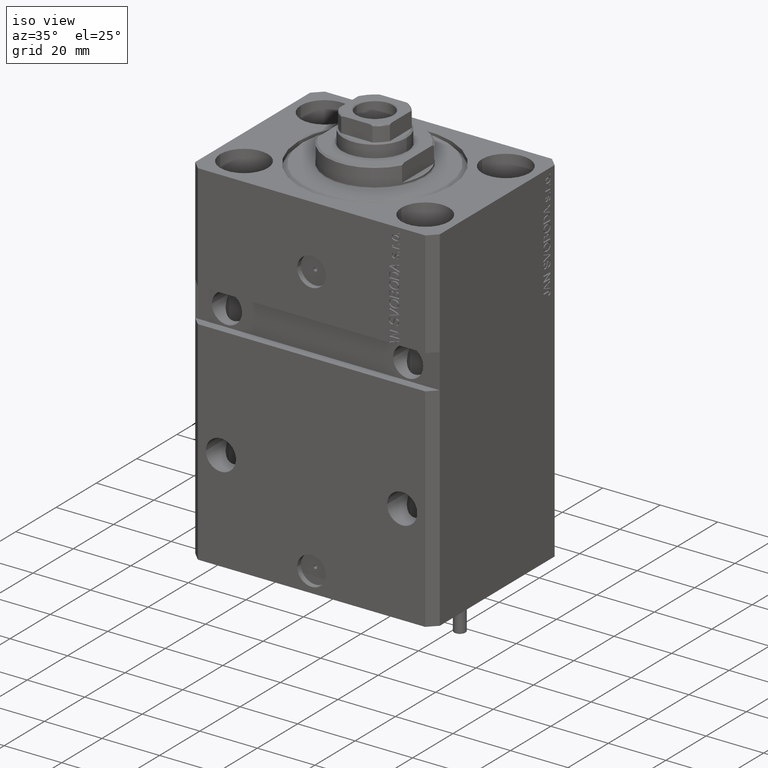
[diagram: clean part render]
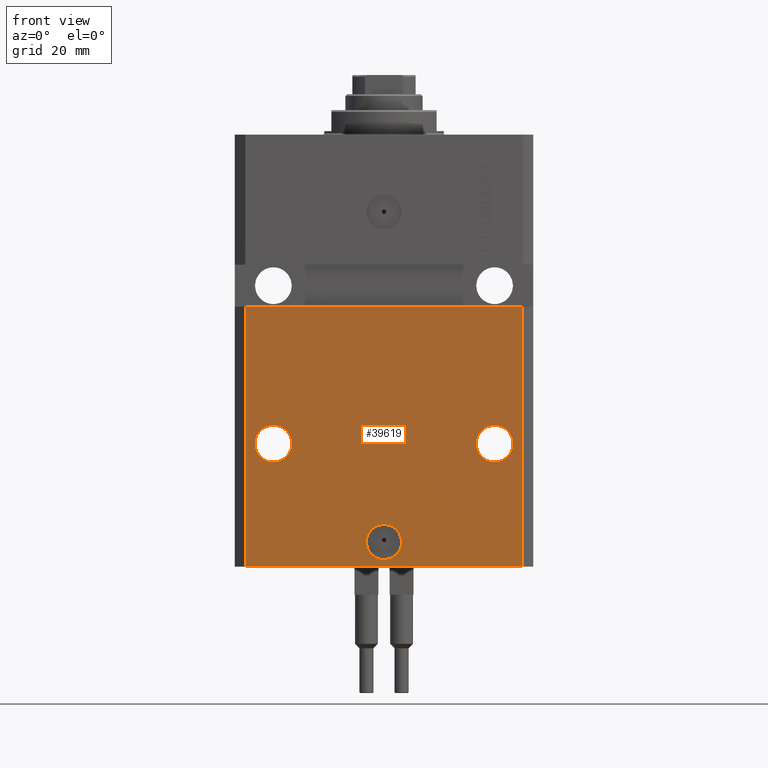
[diagram: tour spotlight — one face highlighted and labeled with its STEP entity id]
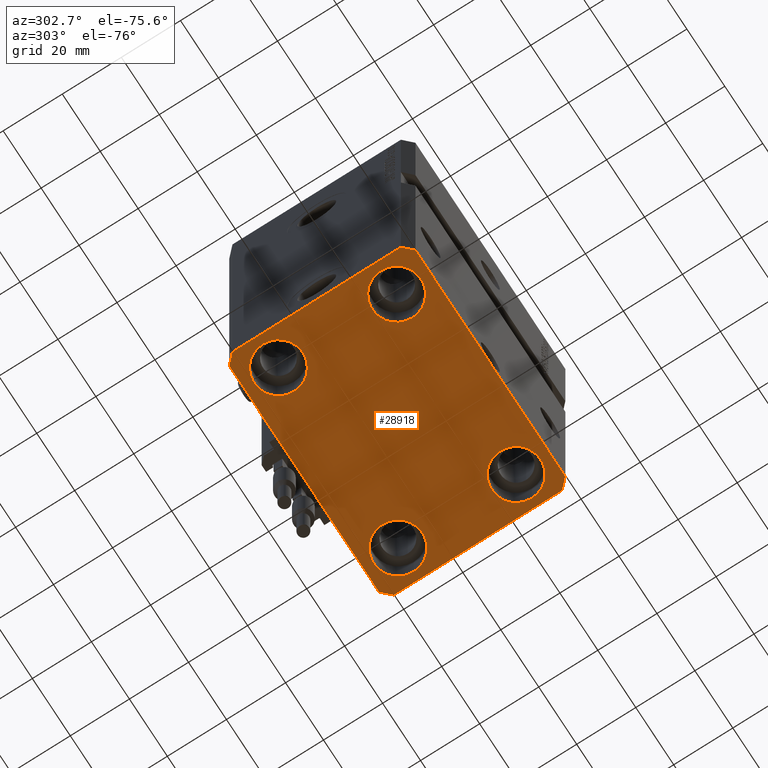
[diagram: tour spotlight — one face highlighted and labeled with its STEP entity id]
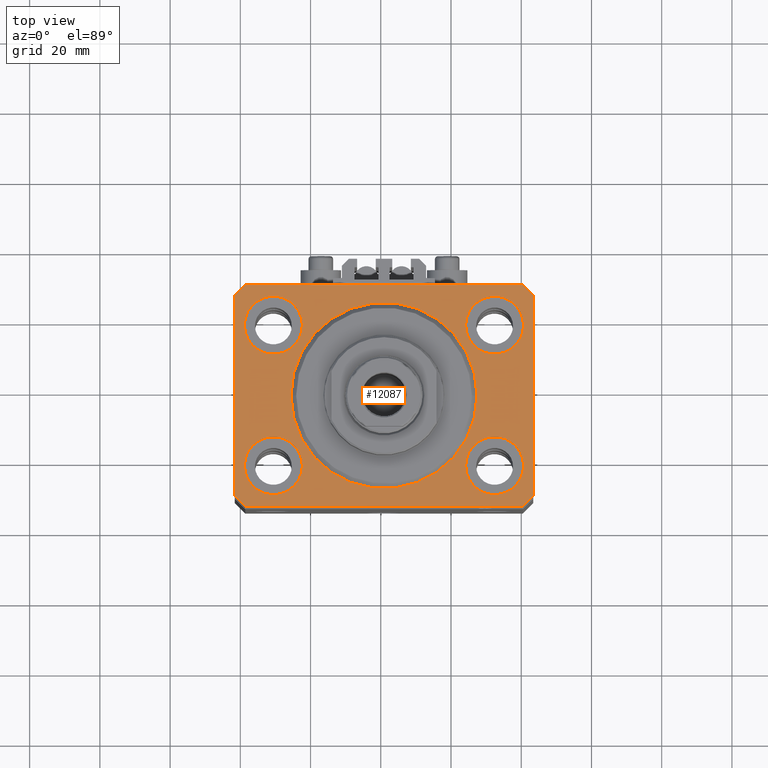
[diagram: tour spotlight — one face highlighted and labeled with its STEP entity id]
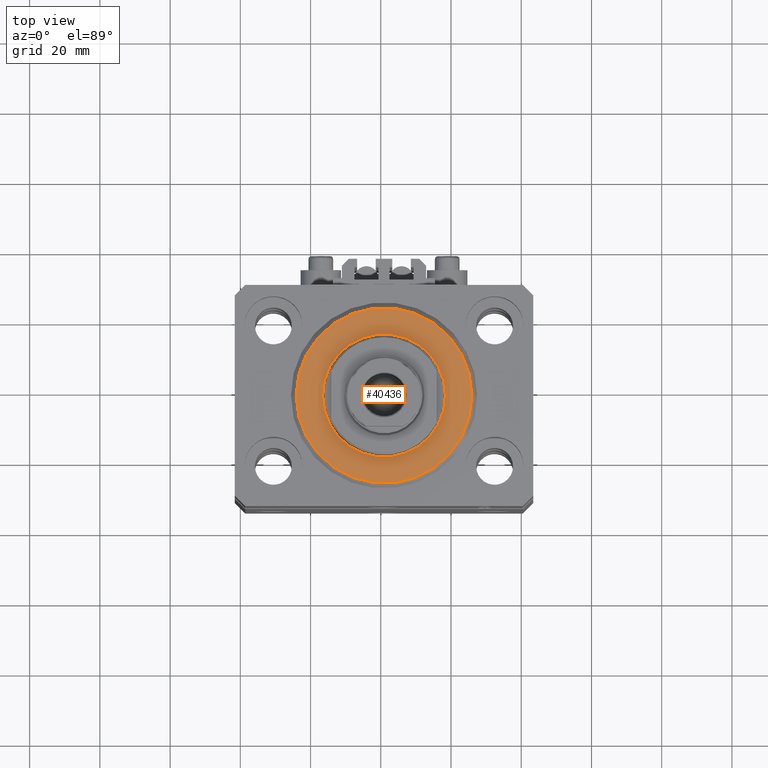
[diagram: tour spotlight — one face highlighted and labeled with its STEP entity id]
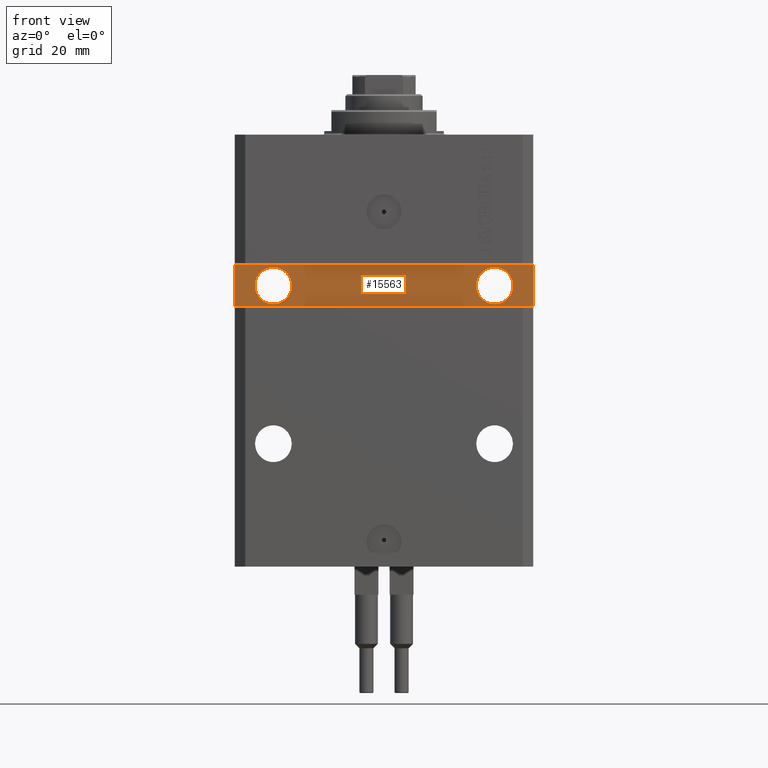
[diagram: tour spotlight — one face highlighted and labeled with its STEP entity id]
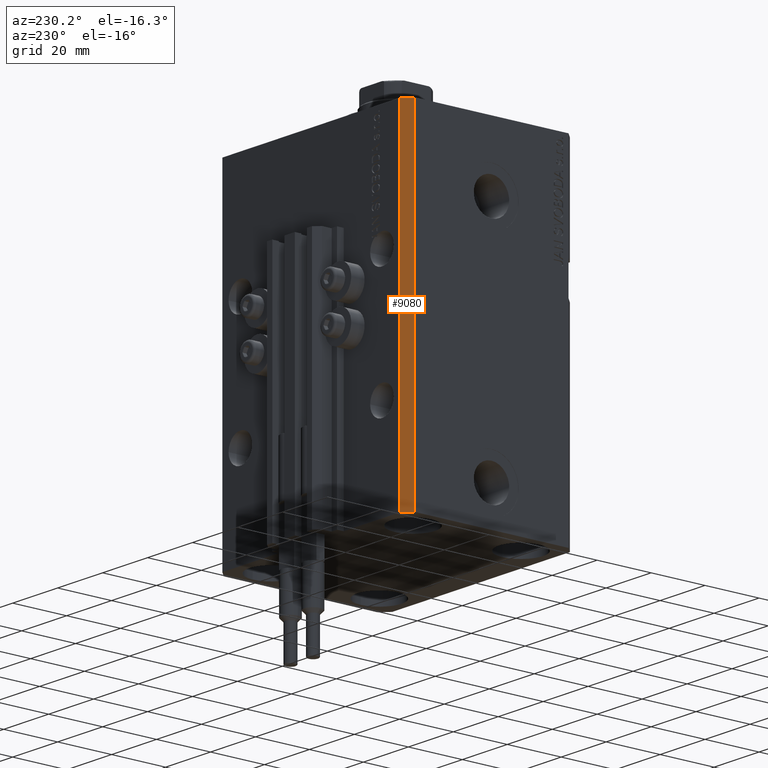
[diagram: tour spotlight — one face highlighted and labeled with its STEP entity id]
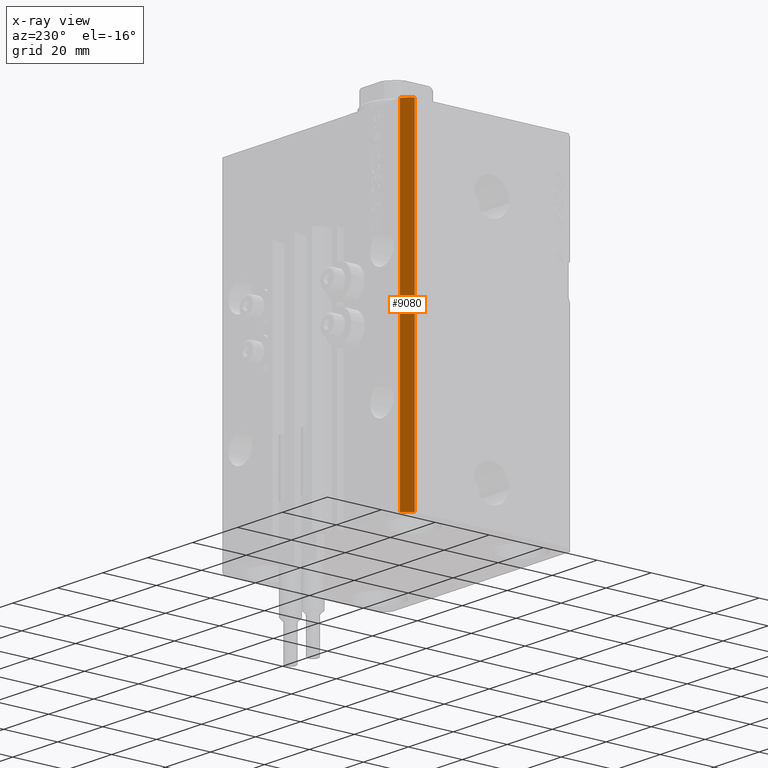
[diagram: x-ray of the same camera — body ghosted, this tour face saturated]
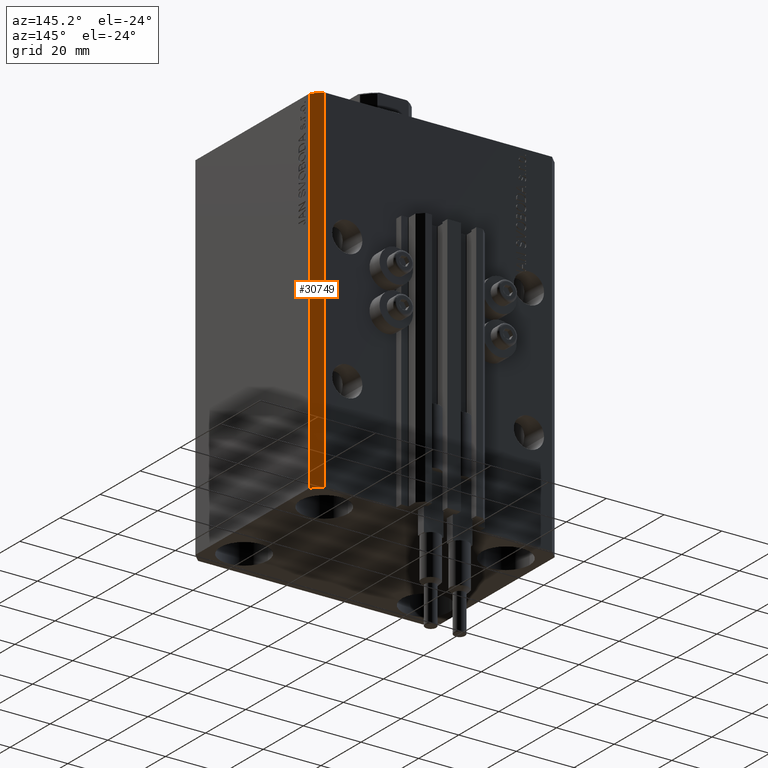
[diagram: tour spotlight — one face highlighted and labeled with its STEP entity id]
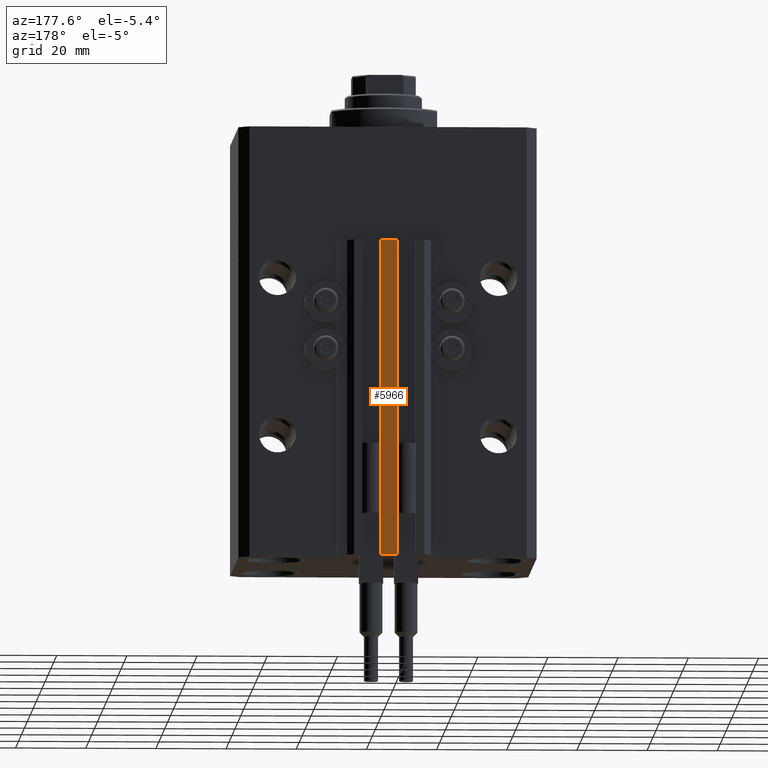
[diagram: tour spotlight — one face highlighted and labeled with its STEP entity id]
A machine part: a face-by-face anatomy tour. The part has 1159 B-rep faces; the first image is the clean iso view, then the 8 largest visible faces are spotlighted one at a time (largest first), each with its STEP entity span.

Face 1 — front view, entity #39619. In plain terms, the highlighted planar face has unit normal (0, -1, 0).
Definition (entity closure, byte-faithful):
#346 = CARTESIAN_POINT ( 'NONE',  ( -26.25000000000001776, -31.50000000000000711, -88.00000000000000000 ) ) ;
#401 = FACE_OUTER_BOUND ( 'NONE', #24232, .T. ) ;
#608 = EDGE_CURVE ( 'NONE', #42490, #39798, #8976, .T. ) ;
#633 = PLANE ( 'NONE',  #36963 ) ;
#1395 = ORIENTED_EDGE ( 'NONE', *, *, #44596, .F. ) ;
#2738 = CARTESIAN_POINT ( 'NONE',  ( 39.50000000000001421, -31.49999999999999289, -48.99999999999997868 ) ) ;
#2892 = CARTESIAN_POINT ( 'NONE',  ( -36.75000000000001421, -31.50000000000000711, -88.00000000000000000 ) ) ;
#3923 = ORIENTED_EDGE ( 'NONE', *, *, #608, .T. ) ;
#4335 = CARTESIAN_POINT ( 'NONE',  ( 36.75000000000001421, -31.49999999999999289, -88.00000000000000000 ) ) ;
#4857 = EDGE_LOOP ( 'NONE', ( #48823, #11406 ) ) ;
#6095 = CARTESIAN_POINT ( 'NONE',  ( -5.000000000000006217, -31.50000000000000000, -115.9999999999999858 ) ) ;
#6344 = CARTESIAN_POINT ( 'NONE',  ( 39.50000000000000711, -31.50000000000000000, -123.0000000000000000 ) ) ;
#6893 = EDGE_CURVE ( 'NONE', #10906, #13227, #46861, .T. ) ;
#6956 = CARTESIAN_POINT ( 'NONE',  ( -39.50000000000000000, -31.50000000000000711, -48.99999999999999289 ) ) ;
#7179 = CARTESIAN_POINT ( 'NONE',  ( -42.50000000000000000, -31.50000000000000711, -48.99999999999999289 ) ) ;
#7321 = VERTEX_POINT ( 'NONE', #38075 ) ;
#8036 = CIRCLE ( 'NONE', #30952, 5.249999999999997335 ) ;
#8294 = CARTESIAN_POINT ( 'NONE',  ( -39.50000000000000711, -31.50000000000000000, -123.0000000000000000 ) ) ;
#8811 = DIRECTION ( 'NONE',  ( 1.000000000000000000, 0.000000000000000000, 0.000000000000000000 ) ) ;
#8976 = LINE ( 'NONE', #9219, #23827 ) ;
#9219 = CARTESIAN_POINT ( 'NONE',  ( 39.50000000000000711, -31.50000000000000000, -123.0000000000000000 ) ) ;
#9681 = VERTEX_POINT ( 'NONE', #6956 ) ;
#10906 = VERTEX_POINT ( 'NONE', #346 ) ;
#11292 = FACE_BOUND ( 'NONE', #20042, .T. ) ;
#11387 = LINE ( 'NONE', #7179, #12399 ) ;
#11406 = ORIENTED_EDGE ( 'NONE', *, *, #19606, .F. ) ;
#11650 = CARTESIAN_POINT ( 'NONE',  ( -39.50000000000000711, -31.50000000000000000, -123.0000000000000000 ) ) ;
#11990 = AXIS2_PLACEMENT_3D ( 'NONE', #48583, #30260, #30007 ) ;
#12399 = VECTOR ( 'NONE', #37119, 1000.000000000000000 ) ;
#13227 = VERTEX_POINT ( 'NONE', #2892 ) ;
#15118 = LINE ( 'NONE', #11650, #24128 ) ;
#15726 = CARTESIAN_POINT ( 'NONE',  ( -39.50000000000000711, -31.50000000000000000, -123.0000000000000000 ) ) ;
#16004 = VERTEX_POINT ( 'NONE', #8294 ) ;
#16245 = DIRECTION ( 'NONE',  ( 1.176083712526788232E-16, -1.000000000000000000, 0.000000000000000000 ) ) ;
#16613 = CIRCLE ( 'NONE', #40305, 5.000000000000006217 ) ;
#16732 = CARTESIAN_POINT ( 'NONE',  ( 0.000000000000000000, -31.50000000000000000, -115.9999999999999858 ) ) ;
#17476 = CARTESIAN_POINT ( 'NONE',  ( 26.25000000000001776, -31.49999999999999289, -88.00000000000000000 ) ) ;
#17695 = CARTESIAN_POINT ( 'NONE',  ( 31.50000000000001421, -31.49999999999999289, -88.00000000000000000 ) ) ;
#17737 = EDGE_CURVE ( 'NONE', #25678, #7321, #37999, .T. ) ;
#18204 = LINE ( 'NONE', #26367, #47164 ) ;
#19155 = EDGE_CURVE ( 'NONE', #13227, #10906, #19864, .T. ) ;
#19606 = EDGE_CURVE ( 'NONE', #25655, #38736, #8036, .T. ) ;
#19864 = CIRCLE ( 'NONE', #11990, 5.249999999999997335 ) ;
#20042 = EDGE_LOOP ( 'NONE', ( #1395, #29480 ) ) ;
#22305 = DIRECTION ( 'NONE',  ( -1.000000000000000000, 0.000000000000000000, 0.000000000000000000 ) ) ;
#23139 = FACE_BOUND ( 'NONE', #45261, .T. ) ;
#23736 = AXIS2_PLACEMENT_3D ( 'NONE', #16732, #16245, #8811 ) ;
#23827 = VECTOR ( 'NONE', #36189, 1000.000000000000000 ) ;
#24128 = VECTOR ( 'NONE', #45782, 1000.000000000000000 ) ;
#24232 = EDGE_LOOP ( 'NONE', ( #30157, #27457, #33352, #3923 ) ) ;
#25655 = VERTEX_POINT ( 'NONE', #17476 ) ;
#25678 = VERTEX_POINT ( 'NONE', #6095 ) ;
#26266 = DIRECTION ( 'NONE',  ( 1.176083712526788232E-16, -1.000000000000000000, 0.000000000000000000 ) ) ;
#26367 = CARTESIAN_POINT ( 'NONE',  ( -39.50000000000000711, -31.50000000000000000, -123.0000000000000000 ) ) ;
#27457 = ORIENTED_EDGE ( 'NONE', *, *, #37882, .F. ) ;
#28183 = CARTESIAN_POINT ( 'NONE',  ( 31.50000000000001421, -31.49999999999999289, -88.00000000000000000 ) ) ;
#28571 = DIRECTION ( 'NONE',  ( 1.000000000000000000, 0.000000000000000000, 0.000000000000000000 ) ) ;
#29480 = ORIENTED_EDGE ( 'NONE', *, *, #17737, .F. ) ;
#29489 = AXIS2_PLACEMENT_3D ( 'NONE', #48047, #26266, #22305 ) ;
#30007 = DIRECTION ( 'NONE',  ( -1.000000000000000000, 0.000000000000000000, 0.000000000000000000 ) ) ;
#30061 = DIRECTION ( 'NONE',  ( 0.000000000000000000, 0.000000000000000000, 1.000000000000000000 ) ) ;
#30157 = ORIENTED_EDGE ( 'NONE', *, *, #34737, .F. ) ;
#30260 = DIRECTION ( 'NONE',  ( 1.176083712526788232E-16, -1.000000000000000000, 0.000000000000000000 ) ) ;
#30335 = FACE_BOUND ( 'NONE', #4857, .T. ) ;
#30461 = AXIS2_PLACEMENT_3D ( 'NONE', #28183, #42550, #39567 ) ;
#30529 = CARTESIAN_POINT ( 'NONE',  ( 0.000000000000000000, -31.50000000000000000, -115.9999999999999858 ) ) ;
#30952 = AXIS2_PLACEMENT_3D ( 'NONE', #17695, #44652, #28571 ) ;
#31653 = EDGE_CURVE ( 'NONE', #16004, #42490, #15118, .T. ) ;
#31778 = EDGE_CURVE ( 'NONE', #38736, #25655, #45513, .T. ) ;
#33352 = ORIENTED_EDGE ( 'NONE', *, *, #31653, .T. ) ;
#34737 = EDGE_CURVE ( 'NONE', #9681, #39798, #11387, .T. ) ;
#34797 = ORIENTED_EDGE ( 'NONE', *, *, #6893, .F. ) ;
#36189 = DIRECTION ( 'NONE',  ( 0.000000000000000000, 0.000000000000000000, 1.000000000000000000 ) ) ;
#36963 = AXIS2_PLACEMENT_3D ( 'NONE', #15726, #45899, #41715 ) ;
#37119 = DIRECTION ( 'NONE',  ( 1.000000000000000000, 1.632680918566406300E-16, 1.632680918566406300E-16 ) ) ;
#37882 = EDGE_CURVE ( 'NONE', #16004, #9681, #18204, .T. ) ;
#37999 = CIRCLE ( 'NONE', #23736, 5.000000000000006217 ) ;
#38075 = CARTESIAN_POINT ( 'NONE',  ( 5.000000000000006217, -31.50000000000000000, -115.9999999999999858 ) ) ;
#38736 = VERTEX_POINT ( 'NONE', #4335 ) ;
#39069 = ORIENTED_EDGE ( 'NONE', *, *, #19155, .F. ) ;
#39567 = DIRECTION ( 'NONE',  ( 1.000000000000000000, 0.000000000000000000, 0.000000000000000000 ) ) ;
#39619 = ADVANCED_FACE ( 'NONE', ( #11292, #30335, #23139, #401 ), #633, .T. ) ;
#39798 = VERTEX_POINT ( 'NONE', #2738 ) ;
#40305 = AXIS2_PLACEMENT_3D ( 'NONE', #30529, #42388, #45142 ) ;
#41715 = DIRECTION ( 'NONE',  ( 0.000000000000000000, -0.000000000000000000, -1.000000000000000000 ) ) ;
#42388 = DIRECTION ( 'NONE',  ( 1.176083712526788232E-16, -1.000000000000000000, 0.000000000000000000 ) ) ;
#42490 = VERTEX_POINT ( 'NONE', #6344 ) ;
#42550 = DIRECTION ( 'NONE',  ( 1.176083712526788232E-16, -1.000000000000000000, 0.000000000000000000 ) ) ;
#44596 = EDGE_CURVE ( 'NONE', #7321, #25678, #16613, .T. ) ;
#44652 = DIRECTION ( 'NONE',  ( 1.176083712526788232E-16, -1.000000000000000000, 0.000000000000000000 ) ) ;
#45142 = DIRECTION ( 'NONE',  ( 1.000000000000000000, 0.000000000000000000, 0.000000000000000000 ) ) ;
#45261 = EDGE_LOOP ( 'NONE', ( #34797, #39069 ) ) ;
#45513 = CIRCLE ( 'NONE', #30461, 5.249999999999997335 ) ;
#45782 = DIRECTION ( 'NONE',  ( 1.000000000000000000, 0.000000000000000000, 0.000000000000000000 ) ) ;
#45899 = DIRECTION ( 'NONE',  ( 0.000000000000000000, -1.000000000000000000, 0.000000000000000000 ) ) ;
#46861 = CIRCLE ( 'NONE', #29489, 5.249999999999997335 ) ;
#47164 = VECTOR ( 'NONE', #30061, 1000.000000000000000 ) ;
#48047 = CARTESIAN_POINT ( 'NONE',  ( -31.50000000000001421, -31.50000000000000711, -88.00000000000000000 ) ) ;
#48583 = CARTESIAN_POINT ( 'NONE',  ( -31.50000000000001421, -31.50000000000000711, -88.00000000000000000 ) ) ;
#48823 = ORIENTED_EDGE ( 'NONE', *, *, #31778, .F. ) ;

Face 2 — auxiliary view, entity #28918. In plain terms, the highlighted planar face has unit normal (0, 0, 1).
Definition (entity closure, byte-faithful):
#8 = DIRECTION ( 'NONE',  ( 1.000000000000000000, 0.000000000000000000, 0.000000000000000000 ) ) ;
#184 = AXIS2_PLACEMENT_3D ( 'NONE', #7547, #42163, #30046 ) ;
#404 = DIRECTION ( 'NONE',  ( 1.000000000000000000, 0.000000000000000000, 0.000000000000000000 ) ) ;
#521 = VECTOR ( 'NONE', #23723, 1000.000000000000000 ) ;
#543 = CARTESIAN_POINT ( 'NONE',  ( -42.50000000000000000, 28.50000000000000000, -123.0000000000000000 ) ) ;
#1969 = CARTESIAN_POINT ( 'NONE',  ( 39.74999999999999289, -20.00000000000000000, -123.0000000000000000 ) ) ;
#2247 = FACE_BOUND ( 'NONE', #14676, .T. ) ;
#2476 = ORIENTED_EDGE ( 'NONE', *, *, #39917, .T. ) ;
#3302 = DIRECTION ( 'NONE',  ( -0.000000000000000000, -0.000000000000000000, 1.000000000000000000 ) ) ;
#3689 = EDGE_CURVE ( 'NONE', #3711, #12367, #19121, .T. ) ;
#3711 = VERTEX_POINT ( 'NONE', #8423 ) ;
#4911 = CARTESIAN_POINT ( 'NONE',  ( -42.50000000000000000, 28.50000000000000000, -123.0000000000000000 ) ) ;
#5014 = EDGE_LOOP ( 'NONE', ( #38691, #11265, #37147, #26753, #43038, #42268, #38485, #8661 ) ) ;
#6344 = CARTESIAN_POINT ( 'NONE',  ( 39.50000000000000711, -31.50000000000000000, -123.0000000000000000 ) ) ;
#6436 = PLANE ( 'NONE',  #40641 ) ;
#6579 = CARTESIAN_POINT ( 'NONE',  ( 39.50000000000000711, -31.50000000000000000, -123.0000000000000000 ) ) ;
#7007 = CARTESIAN_POINT ( 'NONE',  ( -31.50000000000000000, -20.00000000000000000, -123.0000000000000000 ) ) ;
#7331 = ORIENTED_EDGE ( 'NONE', *, *, #20529, .T. ) ;
#7547 = CARTESIAN_POINT ( 'NONE',  ( -31.50000000000000000, -20.00000000000000000, -123.0000000000000000 ) ) ;
#8000 = VERTEX_POINT ( 'NONE', #47761 ) ;
#8223 = DIRECTION ( 'NONE',  ( 8.886653596232072440E-15, 1.000000000000000000, 0.000000000000000000 ) ) ;
#8294 = CARTESIAN_POINT ( 'NONE',  ( -39.50000000000000711, -31.50000000000000000, -123.0000000000000000 ) ) ;
#8328 = EDGE_CURVE ( 'NONE', #8000, #37282, #27897, .T. ) ;
#8423 = CARTESIAN_POINT ( 'NONE',  ( 39.74999999999999289, 20.00000000000001066, -123.0000000000000000 ) ) ;
#8639 = LINE ( 'NONE', #16561, #521 ) ;
#8661 = ORIENTED_EDGE ( 'NONE', *, *, #9044, .F. ) ;
#9044 = EDGE_CURVE ( 'NONE', #37282, #28803, #28418, .T. ) ;
#9066 = ORIENTED_EDGE ( 'NONE', *, *, #45829, .T. ) ;
#9100 = DIRECTION ( 'NONE',  ( -1.000000000000000000, 0.000000000000000000, 0.000000000000000000 ) ) ;
#9110 = LINE ( 'NONE', #4911, #39312 ) ;
#9292 = CIRCLE ( 'NONE', #31399, 8.249999999999992895 ) ;
#9931 = VERTEX_POINT ( 'NONE', #1969 ) ;
#9977 = CIRCLE ( 'NONE', #14752, 8.250000000000000000 ) ;
#10155 = FACE_BOUND ( 'NONE', #45198, .T. ) ;
#10275 = CARTESIAN_POINT ( 'NONE',  ( 31.50000000000000000, 20.00000000000001066, -123.0000000000000000 ) ) ;
#10471 = EDGE_CURVE ( 'NONE', #36261, #19921, #36268, .T. ) ;
#10520 = VERTEX_POINT ( 'NONE', #26626 ) ;
#11111 = CIRCLE ( 'NONE', #26898, 8.249999999999992895 ) ;
#11265 = ORIENTED_EDGE ( 'NONE', *, *, #36259, .F. ) ;
#11650 = CARTESIAN_POINT ( 'NONE',  ( -39.50000000000000711, -31.50000000000000000, -123.0000000000000000 ) ) ;
#12351 = CARTESIAN_POINT ( 'NONE',  ( -39.50000000000000711, 31.50000000000000000, -123.0000000000000000 ) ) ;
#12367 = VERTEX_POINT ( 'NONE', #36784 ) ;
#13506 = ORIENTED_EDGE ( 'NONE', *, *, #3689, .T. ) ;
#14102 = FACE_BOUND ( 'NONE', #41236, .T. ) ;
#14221 = DIRECTION ( 'NONE',  ( -0.000000000000000000, -0.000000000000000000, 1.000000000000000000 ) ) ;
#14676 = EDGE_LOOP ( 'NONE', ( #38885, #39965 ) ) ;
#14752 = AXIS2_PLACEMENT_3D ( 'NONE', #7007, #3302, #18876 ) ;
#15118 = LINE ( 'NONE', #11650, #24128 ) ;
#15178 = CIRCLE ( 'NONE', #31761, 8.249999999999992895 ) ;
#15992 = CIRCLE ( 'NONE', #184, 8.250000000000000000 ) ;
#16004 = VERTEX_POINT ( 'NONE', #8294 ) ;
#16561 = CARTESIAN_POINT ( 'NONE',  ( -42.50000000000000000, -28.50000000000000000, -123.0000000000000000 ) ) ;
#16591 = CARTESIAN_POINT ( 'NONE',  ( 31.50000000000000000, 20.00000000000001066, -123.0000000000000000 ) ) ;
#17340 = FACE_OUTER_BOUND ( 'NONE', #5014, .T. ) ;
#17380 = CARTESIAN_POINT ( 'NONE',  ( 31.50000000000000000, -20.00000000000000000, -123.0000000000000000 ) ) ;
#17941 = CARTESIAN_POINT ( 'NONE',  ( -31.50000000000000000, 20.00000000000000000, -123.0000000000000000 ) ) ;
#18782 = VECTOR ( 'NONE', #8223, 1000.000000000000000 ) ;
#18876 = DIRECTION ( 'NONE',  ( 1.000000000000000000, 0.000000000000000000, 0.000000000000000000 ) ) ;
#18937 = DIRECTION ( 'NONE',  ( 0.7071067811865483499, 0.7071067811865466846, 0.000000000000000000 ) ) ;
#19121 = CIRCLE ( 'NONE', #38194, 8.249999999999992895 ) ;
#19180 = CARTESIAN_POINT ( 'NONE',  ( 42.50000000000051870, 28.49999999999995381, -123.0000000000000000 ) ) ;
#19844 = LINE ( 'NONE', #42129, #18782 ) ;
#19921 = VERTEX_POINT ( 'NONE', #35949 ) ;
#20526 = EDGE_CURVE ( 'NONE', #19921, #36261, #39679, .T. ) ;
#20529 = EDGE_CURVE ( 'NONE', #12367, #3711, #15178, .T. ) ;
#20566 = VERTEX_POINT ( 'NONE', #29060 ) ;
#20709 = EDGE_CURVE ( 'NONE', #23319, #44407, #15992, .T. ) ;
#20802 = EDGE_LOOP ( 'NONE', ( #2476, #9066 ) ) ;
#20961 = VECTOR ( 'NONE', #18937, 1000.000000000000000 ) ;
#22477 = VECTOR ( 'NONE', #43279, 1000.000000000000000 ) ;
#23319 = VERTEX_POINT ( 'NONE', #39035 ) ;
#23357 = CARTESIAN_POINT ( 'NONE',  ( 42.50000000000051870, 28.49999999999995381, -123.0000000000000000 ) ) ;
#23402 = ORIENTED_EDGE ( 'NONE', *, *, #36513, .T. ) ;
#23723 = DIRECTION ( 'NONE',  ( 0.7071067811865471286, -0.7071067811865479058, 0.000000000000000000 ) ) ;
#24128 = VECTOR ( 'NONE', #45782, 1000.000000000000000 ) ;
#24197 = DIRECTION ( 'NONE',  ( 0.000000000000000000, -1.000000000000000000, 0.000000000000000000 ) ) ;
#26626 = CARTESIAN_POINT ( 'NONE',  ( -42.50000000000000000, -28.50000000000000000, -123.0000000000000000 ) ) ;
#26753 = ORIENTED_EDGE ( 'NONE', *, *, #30479, .F. ) ;
#26898 = AXIS2_PLACEMENT_3D ( 'NONE', #17380, #32952, #28985 ) ;
#27105 = CARTESIAN_POINT ( 'NONE',  ( -31.50000000000000000, 20.00000000000000000, -123.0000000000000000 ) ) ;
#27318 = DIRECTION ( 'NONE',  ( -0.7071067811865356934, 0.7071067811865594521, 0.000000000000000000 ) ) ;
#27458 = AXIS2_PLACEMENT_3D ( 'NONE', #27105, #45667, #404 ) ;
#27831 = CARTESIAN_POINT ( 'NONE',  ( -23.25000000000000000, -20.00000000000000000, -123.0000000000000000 ) ) ;
#27897 = LINE ( 'NONE', #31609, #30318 ) ;
#28418 = LINE ( 'NONE', #12351, #22477 ) ;
#28803 = VERTEX_POINT ( 'NONE', #543 ) ;
#28918 = ADVANCED_FACE ( 'NONE', ( #10155, #40086, #14102, #2247, #17340 ), #6436, .F. ) ;
#28985 = DIRECTION ( 'NONE',  ( 1.000000000000000000, 0.000000000000000000, 0.000000000000000000 ) ) ;
#29060 = CARTESIAN_POINT ( 'NONE',  ( 23.25000000000000355, -20.00000000000000000, -123.0000000000000000 ) ) ;
#30046 = DIRECTION ( 'NONE',  ( 1.000000000000000000, 0.000000000000000000, 0.000000000000000000 ) ) ;
#30318 = VECTOR ( 'NONE', #9100, 1000.000000000000000 ) ;
#30479 = EDGE_CURVE ( 'NONE', #42490, #33978, #44921, .T. ) ;
#30636 = VERTEX_POINT ( 'NONE', #19180 ) ;
#31399 = AXIS2_PLACEMENT_3D ( 'NONE', #45754, #41809, #8 ) ;
#31609 = CARTESIAN_POINT ( 'NONE',  ( 39.50000000000056843, 31.50000000000000000, -123.0000000000000000 ) ) ;
#31653 = EDGE_CURVE ( 'NONE', #16004, #42490, #15118, .T. ) ;
#31669 = DIRECTION ( 'NONE',  ( -0.000000000000000000, -0.000000000000000000, 1.000000000000000000 ) ) ;
#31761 = AXIS2_PLACEMENT_3D ( 'NONE', #10275, #32789, #47885 ) ;
#32431 = CARTESIAN_POINT ( 'NONE',  ( 0.000000000000000000, 0.000000000000000000, -123.0000000000000000 ) ) ;
#32789 = DIRECTION ( 'NONE',  ( -0.000000000000000000, -0.000000000000000000, 1.000000000000000000 ) ) ;
#32952 = DIRECTION ( 'NONE',  ( -0.000000000000000000, -0.000000000000000000, 1.000000000000000000 ) ) ;
#33978 = VERTEX_POINT ( 'NONE', #39775 ) ;
#35949 = CARTESIAN_POINT ( 'NONE',  ( -23.25000000000000000, 20.00000000000000000, -123.0000000000000000 ) ) ;
#36259 = EDGE_CURVE ( 'NONE', #30636, #8000, #38226, .T. ) ;
#36261 = VERTEX_POINT ( 'NONE', #38450 ) ;
#36268 = CIRCLE ( 'NONE', #27458, 8.250000000000000000 ) ;
#36513 = EDGE_CURVE ( 'NONE', #44407, #23319, #9977, .T. ) ;
#36634 = DIRECTION ( 'NONE',  ( 0.000000000000000000, 0.000000000000000000, 1.000000000000000000 ) ) ;
#36784 = CARTESIAN_POINT ( 'NONE',  ( 23.25000000000000355, 20.00000000000001066, -123.0000000000000000 ) ) ;
#36820 = VECTOR ( 'NONE', #27318, 1000.000000000000114 ) ;
#36909 = EDGE_CURVE ( 'NONE', #10520, #16004, #8639, .T. ) ;
#37147 = ORIENTED_EDGE ( 'NONE', *, *, #39259, .F. ) ;
#37282 = VERTEX_POINT ( 'NONE', #46290 ) ;
#38194 = AXIS2_PLACEMENT_3D ( 'NONE', #16591, #31669, #46510 ) ;
#38226 = LINE ( 'NONE', #23357, #36820 ) ;
#38450 = CARTESIAN_POINT ( 'NONE',  ( -39.75000000000000000, 20.00000000000000000, -123.0000000000000000 ) ) ;
#38485 = ORIENTED_EDGE ( 'NONE', *, *, #40151, .F. ) ;
#38691 = ORIENTED_EDGE ( 'NONE', *, *, #8328, .F. ) ;
#38885 = ORIENTED_EDGE ( 'NONE', *, *, #10471, .T. ) ;
#39035 = CARTESIAN_POINT ( 'NONE',  ( -39.75000000000000000, -20.00000000000000000, -123.0000000000000000 ) ) ;
#39259 = EDGE_CURVE ( 'NONE', #33978, #30636, #19844, .T. ) ;
#39312 = VECTOR ( 'NONE', #24197, 1000.000000000000000 ) ;
#39679 = CIRCLE ( 'NONE', #42826, 8.250000000000000000 ) ;
#39775 = CARTESIAN_POINT ( 'NONE',  ( 42.50000000000000711, -28.50000000000000355, -123.0000000000000000 ) ) ;
#39917 = EDGE_CURVE ( 'NONE', #20566, #9931, #9292, .T. ) ;
#39965 = ORIENTED_EDGE ( 'NONE', *, *, #20526, .T. ) ;
#40086 = FACE_BOUND ( 'NONE', #20802, .T. ) ;
#40151 = EDGE_CURVE ( 'NONE', #28803, #10520, #9110, .T. ) ;
#40641 = AXIS2_PLACEMENT_3D ( 'NONE', #32431, #36634, #47025 ) ;
#41236 = EDGE_LOOP ( 'NONE', ( #7331, #13506 ) ) ;
#41809 = DIRECTION ( 'NONE',  ( -0.000000000000000000, -0.000000000000000000, 1.000000000000000000 ) ) ;
#42129 = CARTESIAN_POINT ( 'NONE',  ( 42.50000000000000711, -28.50000000000000355, -123.0000000000000000 ) ) ;
#42163 = DIRECTION ( 'NONE',  ( -0.000000000000000000, -0.000000000000000000, 1.000000000000000000 ) ) ;
#42268 = ORIENTED_EDGE ( 'NONE', *, *, #36909, .F. ) ;
#42490 = VERTEX_POINT ( 'NONE', #6344 ) ;
#42826 = AXIS2_PLACEMENT_3D ( 'NONE', #17941, #14221, #44174 ) ;
#43038 = ORIENTED_EDGE ( 'NONE', *, *, #31653, .F. ) ;
#43279 = DIRECTION ( 'NONE',  ( -0.7071067811865471286, -0.7071067811865479058, 0.000000000000000000 ) ) ;
#44174 = DIRECTION ( 'NONE',  ( 1.000000000000000000, 0.000000000000000000, 0.000000000000000000 ) ) ;
#44339 = ORIENTED_EDGE ( 'NONE', *, *, #20709, .T. ) ;
#44407 = VERTEX_POINT ( 'NONE', #27831 ) ;
#44921 = LINE ( 'NONE', #6579, #20961 ) ;
#45198 = EDGE_LOOP ( 'NONE', ( #44339, #23402 ) ) ;
#45667 = DIRECTION ( 'NONE',  ( -0.000000000000000000, -0.000000000000000000, 1.000000000000000000 ) ) ;
#45754 = CARTESIAN_POINT ( 'NONE',  ( 31.50000000000000000, -20.00000000000000000, -123.0000000000000000 ) ) ;
#45782 = DIRECTION ( 'NONE',  ( 1.000000000000000000, 0.000000000000000000, 0.000000000000000000 ) ) ;
#45829 = EDGE_CURVE ( 'NONE', #9931, #20566, #11111, .T. ) ;
#46290 = CARTESIAN_POINT ( 'NONE',  ( -39.50000000000000711, 31.50000000000000000, -123.0000000000000000 ) ) ;
#46510 = DIRECTION ( 'NONE',  ( 1.000000000000000000, 0.000000000000000000, 0.000000000000000000 ) ) ;
#47025 = DIRECTION ( 'NONE',  ( 1.000000000000000000, 0.000000000000000000, -0.000000000000000000 ) ) ;
#47761 = CARTESIAN_POINT ( 'NONE',  ( 39.50000000000056843, 31.50000000000000000, -123.0000000000000000 ) ) ;
#47885 = DIRECTION ( 'NONE',  ( 1.000000000000000000, 0.000000000000000000, 0.000000000000000000 ) ) ;

Face 3 — top view, entity #12087. In plain terms, the highlighted planar face has unit normal (0, 0, 1).
Definition (entity closure, byte-faithful):
#297 = ORIENTED_EDGE ( 'NONE', *, *, #37250, .F. ) ;
#939 = ORIENTED_EDGE ( 'NONE', *, *, #3207, .T. ) ;
#1017 = CARTESIAN_POINT ( 'NONE',  ( -39.50000000000000711, 31.50000000000000000, 0.000000000000000000 ) ) ;
#1848 = CIRCLE ( 'NONE', #15281, 8.249999999999992895 ) ;
#1966 = FACE_BOUND ( 'NONE', #20077, .T. ) ;
#2208 = FACE_BOUND ( 'NONE', #4429, .T. ) ;
#2898 = VERTEX_POINT ( 'NONE', #3659 ) ;
#3207 = EDGE_CURVE ( 'NONE', #48267, #21874, #19110, .T. ) ;
#3369 = VERTEX_POINT ( 'NONE', #32777 ) ;
#3495 = VECTOR ( 'NONE', #7642, 1000.000000000000000 ) ;
#3518 = AXIS2_PLACEMENT_3D ( 'NONE', #5226, #35661, #12902 ) ;
#3559 = CIRCLE ( 'NONE', #34348, 8.249999999999992895 ) ;
#3659 = CARTESIAN_POINT ( 'NONE',  ( -42.50000000000000000, 28.50000000000000000, 0.000000000000000000 ) ) ;
#3805 = LINE ( 'NONE', #36964, #32386 ) ;
#4147 = DIRECTION ( 'NONE',  ( 8.886653596232072440E-15, 1.000000000000000000, 0.000000000000000000 ) ) ;
#4429 = EDGE_LOOP ( 'NONE', ( #19130, #45260 ) ) ;
#4594 = VERTEX_POINT ( 'NONE', #1017 ) ;
#4728 = DIRECTION ( 'NONE',  ( 1.000000000000000000, 0.000000000000000000, 0.000000000000000000 ) ) ;
#5008 = DIRECTION ( 'NONE',  ( 1.000000000000000000, 0.000000000000000000, 0.000000000000000000 ) ) ;
#5196 = CARTESIAN_POINT ( 'NONE',  ( 42.50000000000051870, 28.49999999999995381, 0.000000000000000000 ) ) ;
#5226 = CARTESIAN_POINT ( 'NONE',  ( -31.50000000000000000, -20.00000000000000000, 0.000000000000000000 ) ) ;
#5267 = EDGE_CURVE ( 'NONE', #18645, #12774, #42845, .T. ) ;
#5413 = EDGE_CURVE ( 'NONE', #6099, #19024, #42081, .T. ) ;
#5628 = DIRECTION ( 'NONE',  ( 0.000000000000000000, 0.000000000000000000, 1.000000000000000000 ) ) ;
#5746 = AXIS2_PLACEMENT_3D ( 'NONE', #10089, #43501, #47205 ) ;
#6099 = VERTEX_POINT ( 'NONE', #22836 ) ;
#6478 = VECTOR ( 'NONE', #11787, 1000.000000000000000 ) ;
#6654 = FACE_OUTER_BOUND ( 'NONE', #35098, .T. ) ;
#6660 = EDGE_CURVE ( 'NONE', #3369, #31295, #1848, .T. ) ;
#6895 = DIRECTION ( 'NONE',  ( 0.000000000000000000, 0.000000000000000000, 1.000000000000000000 ) ) ;
#6938 = CARTESIAN_POINT ( 'NONE',  ( -31.50000000000000000, 20.00000000000000000, 0.000000000000000000 ) ) ;
#7642 = DIRECTION ( 'NONE',  ( 1.000000000000000000, 0.000000000000000000, 0.000000000000000000 ) ) ;
#8701 = EDGE_CURVE ( 'NONE', #22311, #46149, #40629, .T. ) ;
#9191 = CIRCLE ( 'NONE', #48734, 8.250000000000000000 ) ;
#9425 = DIRECTION ( 'NONE',  ( 1.000000000000000000, 0.000000000000000000, 0.000000000000000000 ) ) ;
#9727 = VECTOR ( 'NONE', #34198, 1000.000000000000000 ) ;
#10089 = CARTESIAN_POINT ( 'NONE',  ( 0.000000000000000000, 0.000000000000000000, 0.000000000000000000 ) ) ;
#10642 = ORIENTED_EDGE ( 'NONE', *, *, #44073, .F. ) ;
#11272 = ORIENTED_EDGE ( 'NONE', *, *, #33587, .T. ) ;
#11717 = EDGE_LOOP ( 'NONE', ( #297, #12043 ) ) ;
#11787 = DIRECTION ( 'NONE',  ( 0.000000000000000000, -1.000000000000000000, 0.000000000000000000 ) ) ;
#12043 = ORIENTED_EDGE ( 'NONE', *, *, #5413, .F. ) ;
#12064 = CIRCLE ( 'NONE', #5746, 26.50000000000000355 ) ;
#12087 = ADVANCED_FACE ( 'NONE', ( #1966, #36598, #2208, #29145, #13824, #6654 ), #40294, .T. ) ;
#12093 = CIRCLE ( 'NONE', #42891, 26.50000000000000355 ) ;
#12774 = VERTEX_POINT ( 'NONE', #22111 ) ;
#12902 = DIRECTION ( 'NONE',  ( 1.000000000000000000, 0.000000000000000000, 0.000000000000000000 ) ) ;
#13824 = FACE_BOUND ( 'NONE', #18628, .T. ) ;
#14786 = CARTESIAN_POINT ( 'NONE',  ( 42.50000000000000711, -28.50000000000000355, 0.000000000000000000 ) ) ;
#14989 = VECTOR ( 'NONE', #40017, 1000.000000000000000 ) ;
#15252 = EDGE_CURVE ( 'NONE', #4594, #2898, #3805, .T. ) ;
#15281 = AXIS2_PLACEMENT_3D ( 'NONE', #23324, #30755, #5008 ) ;
#15476 = DIRECTION ( 'NONE',  ( 0.7071067811865471286, -0.7071067811865479058, 0.000000000000000000 ) ) ;
#16140 = ORIENTED_EDGE ( 'NONE', *, *, #18818, .T. ) ;
#17018 = CARTESIAN_POINT ( 'NONE',  ( -23.25000000000000000, -20.00000000000000000, 0.000000000000000000 ) ) ;
#17348 = DIRECTION ( 'NONE',  ( 0.000000000000000000, 0.000000000000000000, 1.000000000000000000 ) ) ;
#17762 = LINE ( 'NONE', #21717, #14989 ) ;
#18129 = DIRECTION ( 'NONE',  ( 0.000000000000000000, 0.000000000000000000, 1.000000000000000000 ) ) ;
#18193 = CARTESIAN_POINT ( 'NONE',  ( 26.50000000000000355, 0.000000000000000000, 0.000000000000000000 ) ) ;
#18628 = EDGE_LOOP ( 'NONE', ( #30373, #41024 ) ) ;
#18645 = VERTEX_POINT ( 'NONE', #27863 ) ;
#18818 = EDGE_CURVE ( 'NONE', #19215, #46115, #26119, .T. ) ;
#18861 = DIRECTION ( 'NONE',  ( 0.000000000000000000, 0.000000000000000000, 1.000000000000000000 ) ) ;
#19024 = VERTEX_POINT ( 'NONE', #47353 ) ;
#19110 = LINE ( 'NONE', #45345, #9727 ) ;
#19130 = ORIENTED_EDGE ( 'NONE', *, *, #6660, .F. ) ;
#19215 = VERTEX_POINT ( 'NONE', #24458 ) ;
#19993 = CARTESIAN_POINT ( 'NONE',  ( -39.50000000000000711, -31.50000000000000000, 0.000000000000000000 ) ) ;
#20077 = EDGE_LOOP ( 'NONE', ( #33130, #25032 ) ) ;
#20103 = ORIENTED_EDGE ( 'NONE', *, *, #15252, .T. ) ;
#20721 = DIRECTION ( 'NONE',  ( 1.000000000000000000, 0.000000000000000000, 0.000000000000000000 ) ) ;
#20730 = AXIS2_PLACEMENT_3D ( 'NONE', #6938, #25244, #22031 ) ;
#21376 = EDGE_CURVE ( 'NONE', #45323, #29023, #12064, .T. ) ;
#21420 = EDGE_CURVE ( 'NONE', #21874, #22843, #45463, .T. ) ;
#21523 = AXIS2_PLACEMENT_3D ( 'NONE', #31197, #18861, #4728 ) ;
#21717 = CARTESIAN_POINT ( 'NONE',  ( 39.50000000000056843, 31.50000000000000000, 0.000000000000000000 ) ) ;
#21874 = VERTEX_POINT ( 'NONE', #39110 ) ;
#22025 = CARTESIAN_POINT ( 'NONE',  ( -26.50000000000000355, 3.245314017740486554E-15, 0.000000000000000000 ) ) ;
#22031 = DIRECTION ( 'NONE',  ( 1.000000000000000000, 0.000000000000000000, 0.000000000000000000 ) ) ;
#22111 = CARTESIAN_POINT ( 'NONE',  ( 39.74999999999999289, -20.00000000000000000, 0.000000000000000000 ) ) ;
#22158 = DIRECTION ( 'NONE',  ( 1.000000000000000000, 0.000000000000000000, 0.000000000000000000 ) ) ;
#22236 = LINE ( 'NONE', #38299, #3495 ) ;
#22311 = VERTEX_POINT ( 'NONE', #17018 ) ;
#22408 = DIRECTION ( 'NONE',  ( 0.000000000000000000, 0.000000000000000000, 1.000000000000000000 ) ) ;
#22836 = CARTESIAN_POINT ( 'NONE',  ( -39.75000000000000000, 20.00000000000000000, 0.000000000000000000 ) ) ;
#22843 = VERTEX_POINT ( 'NONE', #5196 ) ;
#23324 = CARTESIAN_POINT ( 'NONE',  ( 31.50000000000000000, 20.00000000000001066, 0.000000000000000000 ) ) ;
#23533 = EDGE_CURVE ( 'NONE', #2898, #19215, #31543, .T. ) ;
#24141 = ORIENTED_EDGE ( 'NONE', *, *, #27662, .T. ) ;
#24422 = CARTESIAN_POINT ( 'NONE',  ( 31.50000000000000000, -20.00000000000000000, 0.000000000000000000 ) ) ;
#24441 = EDGE_LOOP ( 'NONE', ( #10642, #39707 ) ) ;
#24458 = CARTESIAN_POINT ( 'NONE',  ( -42.50000000000000000, -28.50000000000000000, 0.000000000000000000 ) ) ;
#24759 = CARTESIAN_POINT ( 'NONE',  ( -31.50000000000000000, 20.00000000000000000, 0.000000000000000000 ) ) ;
#25003 = CARTESIAN_POINT ( 'NONE',  ( 31.50000000000000000, 20.00000000000001066, 0.000000000000000000 ) ) ;
#25011 = VECTOR ( 'NONE', #37230, 1000.000000000000114 ) ;
#25032 = ORIENTED_EDGE ( 'NONE', *, *, #45582, .F. ) ;
#25244 = DIRECTION ( 'NONE',  ( 0.000000000000000000, 0.000000000000000000, 1.000000000000000000 ) ) ;
#25261 = CIRCLE ( 'NONE', #47375, 8.249999999999992895 ) ;
#25710 = EDGE_CURVE ( 'NONE', #29023, #45323, #12093, .T. ) ;
#26119 = LINE ( 'NONE', #34029, #44352 ) ;
#26353 = CARTESIAN_POINT ( 'NONE',  ( 23.25000000000000355, 20.00000000000001066, 0.000000000000000000 ) ) ;
#27638 = ORIENTED_EDGE ( 'NONE', *, *, #21420, .T. ) ;
#27662 = EDGE_CURVE ( 'NONE', #46115, #48267, #22236, .T. ) ;
#27726 = DIRECTION ( 'NONE',  ( 1.000000000000000000, 0.000000000000000000, 0.000000000000000000 ) ) ;
#27863 = CARTESIAN_POINT ( 'NONE',  ( 23.25000000000000355, -20.00000000000000000, 0.000000000000000000 ) ) ;
#28910 = CARTESIAN_POINT ( 'NONE',  ( 0.000000000000000000, 0.000000000000000000, 0.000000000000000000 ) ) ;
#29003 = DIRECTION ( 'NONE',  ( 1.000000000000000000, 0.000000000000000000, 0.000000000000000000 ) ) ;
#29023 = VERTEX_POINT ( 'NONE', #22025 ) ;
#29145 = FACE_BOUND ( 'NONE', #11717, .T. ) ;
#29281 = DIRECTION ( 'NONE',  ( -0.7071067811865471286, -0.7071067811865479058, 0.000000000000000000 ) ) ;
#29433 = VECTOR ( 'NONE', #4147, 1000.000000000000000 ) ;
#29574 = CARTESIAN_POINT ( 'NONE',  ( 0.000000000000000000, 0.000000000000000000, 0.000000000000000000 ) ) ;
#29819 = EDGE_CURVE ( 'NONE', #31295, #3369, #3559, .T. ) ;
#30368 = CARTESIAN_POINT ( 'NONE',  ( 39.50000000000000711, -31.50000000000000000, 0.000000000000000000 ) ) ;
#30373 = ORIENTED_EDGE ( 'NONE', *, *, #21376, .F. ) ;
#30380 = CARTESIAN_POINT ( 'NONE',  ( 39.50000000000056843, 31.50000000000000000, 0.000000000000000000 ) ) ;
#30755 = DIRECTION ( 'NONE',  ( 0.000000000000000000, 0.000000000000000000, 1.000000000000000000 ) ) ;
#31197 = CARTESIAN_POINT ( 'NONE',  ( 31.50000000000000000, -20.00000000000000000, 0.000000000000000000 ) ) ;
#31295 = VERTEX_POINT ( 'NONE', #26353 ) ;
#31543 = LINE ( 'NONE', #34779, #6478 ) ;
#32386 = VECTOR ( 'NONE', #29281, 1000.000000000000000 ) ;
#32777 = CARTESIAN_POINT ( 'NONE',  ( 39.74999999999999289, 20.00000000000001066, 0.000000000000000000 ) ) ;
#33130 = ORIENTED_EDGE ( 'NONE', *, *, #8701, .F. ) ;
#33587 = EDGE_CURVE ( 'NONE', #22843, #35769, #38199, .T. ) ;
#34029 = CARTESIAN_POINT ( 'NONE',  ( -42.50000000000000000, -28.50000000000000000, 0.000000000000000000 ) ) ;
#34198 = DIRECTION ( 'NONE',  ( 0.7071067811865483499, 0.7071067811865466846, 0.000000000000000000 ) ) ;
#34348 = AXIS2_PLACEMENT_3D ( 'NONE', #25003, #17348, #9425 ) ;
#34592 = CARTESIAN_POINT ( 'NONE',  ( -39.75000000000000000, -20.00000000000000000, 0.000000000000000000 ) ) ;
#34779 = CARTESIAN_POINT ( 'NONE',  ( -42.50000000000000000, 28.50000000000000000, 0.000000000000000000 ) ) ;
#35098 = EDGE_LOOP ( 'NONE', ( #39137, #20103, #47153, #16140, #24141, #939, #27638, #11272 ) ) ;
#35661 = DIRECTION ( 'NONE',  ( 0.000000000000000000, 0.000000000000000000, 1.000000000000000000 ) ) ;
#35769 = VERTEX_POINT ( 'NONE', #30380 ) ;
#36343 = DIRECTION ( 'NONE',  ( 1.000000000000000000, 0.000000000000000000, -0.000000000000000000 ) ) ;
#36598 = FACE_BOUND ( 'NONE', #24441, .T. ) ;
#36964 = CARTESIAN_POINT ( 'NONE',  ( -39.50000000000000711, 31.50000000000000000, 0.000000000000000000 ) ) ;
#37230 = DIRECTION ( 'NONE',  ( -0.7071067811865356934, 0.7071067811865594521, 0.000000000000000000 ) ) ;
#37250 = EDGE_CURVE ( 'NONE', #19024, #6099, #9191, .T. ) ;
#38199 = LINE ( 'NONE', #44895, #25011 ) ;
#38299 = CARTESIAN_POINT ( 'NONE',  ( -39.50000000000000711, -31.50000000000000000, 0.000000000000000000 ) ) ;
#39110 = CARTESIAN_POINT ( 'NONE',  ( 42.50000000000000711, -28.50000000000000355, 0.000000000000000000 ) ) ;
#39137 = ORIENTED_EDGE ( 'NONE', *, *, #47337, .T. ) ;
#39523 = AXIS2_PLACEMENT_3D ( 'NONE', #44601, #18129, #29003 ) ;
#39707 = ORIENTED_EDGE ( 'NONE', *, *, #5267, .F. ) ;
#40017 = DIRECTION ( 'NONE',  ( -1.000000000000000000, 0.000000000000000000, 0.000000000000000000 ) ) ;
#40294 = PLANE ( 'NONE',  #40972 ) ;
#40629 = CIRCLE ( 'NONE', #3518, 8.250000000000000000 ) ;
#40972 = AXIS2_PLACEMENT_3D ( 'NONE', #28910, #6895, #36343 ) ;
#41024 = ORIENTED_EDGE ( 'NONE', *, *, #25710, .F. ) ;
#41942 = CIRCLE ( 'NONE', #39523, 8.250000000000000000 ) ;
#42081 = CIRCLE ( 'NONE', #20730, 8.250000000000000000 ) ;
#42584 = DIRECTION ( 'NONE',  ( 0.000000000000000000, 0.000000000000000000, 1.000000000000000000 ) ) ;
#42845 = CIRCLE ( 'NONE', #21523, 8.249999999999992895 ) ;
#42891 = AXIS2_PLACEMENT_3D ( 'NONE', #29574, #22408, #22158 ) ;
#43501 = DIRECTION ( 'NONE',  ( 0.000000000000000000, 0.000000000000000000, 1.000000000000000000 ) ) ;
#44073 = EDGE_CURVE ( 'NONE', #12774, #18645, #25261, .T. ) ;
#44352 = VECTOR ( 'NONE', #15476, 1000.000000000000000 ) ;
#44601 = CARTESIAN_POINT ( 'NONE',  ( -31.50000000000000000, -20.00000000000000000, 0.000000000000000000 ) ) ;
#44895 = CARTESIAN_POINT ( 'NONE',  ( 42.50000000000051870, 28.49999999999995381, 0.000000000000000000 ) ) ;
#45260 = ORIENTED_EDGE ( 'NONE', *, *, #29819, .F. ) ;
#45323 = VERTEX_POINT ( 'NONE', #18193 ) ;
#45345 = CARTESIAN_POINT ( 'NONE',  ( 39.50000000000000711, -31.50000000000000000, 0.000000000000000000 ) ) ;
#45463 = LINE ( 'NONE', #14786, #29433 ) ;
#45582 = EDGE_CURVE ( 'NONE', #46149, #22311, #41942, .T. ) ;
#46115 = VERTEX_POINT ( 'NONE', #19993 ) ;
#46149 = VERTEX_POINT ( 'NONE', #34592 ) ;
#47153 = ORIENTED_EDGE ( 'NONE', *, *, #23533, .T. ) ;
#47205 = DIRECTION ( 'NONE',  ( 1.000000000000000000, 0.000000000000000000, 0.000000000000000000 ) ) ;
#47337 = EDGE_CURVE ( 'NONE', #35769, #4594, #17762, .T. ) ;
#47353 = CARTESIAN_POINT ( 'NONE',  ( -23.25000000000000000, 20.00000000000000000, 0.000000000000000000 ) ) ;
#47375 = AXIS2_PLACEMENT_3D ( 'NONE', #24422, #5628, #20721 ) ;
#48267 = VERTEX_POINT ( 'NONE', #30368 ) ;
#48734 = AXIS2_PLACEMENT_3D ( 'NONE', #24759, #42584, #27726 ) ;

Face 4 — top view, entity #40436. In plain terms, the highlighted planar face has unit normal (0, 0, -1).
Definition (entity closure, byte-faithful):
#591 = DIRECTION ( 'NONE',  ( 1.000000000000000000, 0.000000000000000000, 0.000000000000000000 ) ) ;
#3175 = CARTESIAN_POINT ( 'NONE',  ( 24.99999999999998224, 0.000000000000000000, 0.000000000000000000 ) ) ;
#3909 = DIRECTION ( 'NONE',  ( 1.000000000000000000, 0.000000000000000000, -0.000000000000000000 ) ) ;
#4148 = FACE_OUTER_BOUND ( 'NONE', #44804, .T. ) ;
#7841 = AXIS2_PLACEMENT_3D ( 'NONE', #8119, #45729, #7879 ) ;
#7879 = DIRECTION ( 'NONE',  ( 1.000000000000000000, 0.000000000000000000, 0.000000000000000000 ) ) ;
#8101 = CARTESIAN_POINT ( 'NONE',  ( 0.000000000000000000, 0.000000000000000000, 0.000000000000000000 ) ) ;
#8119 = CARTESIAN_POINT ( 'NONE',  ( 0.000000000000000000, 0.000000000000000000, 0.000000000000000000 ) ) ;
#9486 = ORIENTED_EDGE ( 'NONE', *, *, #13131, .T. ) ;
#11543 = CARTESIAN_POINT ( 'NONE',  ( 17.50000000000000000, 0.000000000000000000, 2.168404344971008868E-16 ) ) ;
#13131 = EDGE_CURVE ( 'NONE', #25497, #14587, #24416, .T. ) ;
#14587 = VERTEX_POINT ( 'NONE', #28911 ) ;
#14706 = AXIS2_PLACEMENT_3D ( 'NONE', #8101, #31323, #35287 ) ;
#15491 = CIRCLE ( 'NONE', #14706, 17.50000000000000000 ) ;
#16644 = AXIS2_PLACEMENT_3D ( 'NONE', #22855, #34237, #591 ) ;
#16686 = ORIENTED_EDGE ( 'NONE', *, *, #35898, .T. ) ;
#22292 = VERTEX_POINT ( 'NONE', #23932 ) ;
#22404 = VERTEX_POINT ( 'NONE', #11543 ) ;
#22855 = CARTESIAN_POINT ( 'NONE',  ( 0.000000000000000000, 0.000000000000000000, 0.000000000000000000 ) ) ;
#23327 = CARTESIAN_POINT ( 'NONE',  ( 0.000000000000000000, 0.000000000000000000, 0.000000000000000000 ) ) ;
#23657 = AXIS2_PLACEMENT_3D ( 'NONE', #23327, #44885, #34469 ) ;
#23932 = CARTESIAN_POINT ( 'NONE',  ( -17.50000000000000000, 2.143131898507868643E-15, 2.168404344971008868E-16 ) ) ;
#24416 = CIRCLE ( 'NONE', #7841, 24.99999999999998224 ) ;
#25331 = CIRCLE ( 'NONE', #16644, 17.50000000000000000 ) ;
#25497 = VERTEX_POINT ( 'NONE', #3175 ) ;
#25924 = CARTESIAN_POINT ( 'NONE',  ( 0.000000000000000000, 0.000000000000000000, 0.000000000000000000 ) ) ;
#28911 = CARTESIAN_POINT ( 'NONE',  ( -24.99999999999998224, 3.153465507804433615E-15, 0.000000000000000000 ) ) ;
#31323 = DIRECTION ( 'NONE',  ( 0.000000000000000000, 0.000000000000000000, 1.000000000000000000 ) ) ;
#31810 = ORIENTED_EDGE ( 'NONE', *, *, #43767, .T. ) ;
#33832 = PLANE ( 'NONE',  #44913 ) ;
#34237 = DIRECTION ( 'NONE',  ( 0.000000000000000000, 0.000000000000000000, 1.000000000000000000 ) ) ;
#34469 = DIRECTION ( 'NONE',  ( 1.000000000000000000, 0.000000000000000000, 0.000000000000000000 ) ) ;
#35287 = DIRECTION ( 'NONE',  ( 1.000000000000000000, 0.000000000000000000, 0.000000000000000000 ) ) ;
#35898 = EDGE_CURVE ( 'NONE', #22292, #22404, #15491, .T. ) ;
#36863 = EDGE_LOOP ( 'NONE', ( #38767, #16686 ) ) ;
#38767 = ORIENTED_EDGE ( 'NONE', *, *, #46389, .T. ) ;
#40436 = ADVANCED_FACE ( 'NONE', ( #48447, #4148 ), #33832, .F. ) ;
#43767 = EDGE_CURVE ( 'NONE', #14587, #25497, #44238, .T. ) ;
#44238 = CIRCLE ( 'NONE', #23657, 24.99999999999998224 ) ;
#44804 = EDGE_LOOP ( 'NONE', ( #9486, #31810 ) ) ;
#44885 = DIRECTION ( 'NONE',  ( -0.000000000000000000, -0.000000000000000000, -1.000000000000000000 ) ) ;
#44913 = AXIS2_PLACEMENT_3D ( 'NONE', #25924, #48934, #3909 ) ;
#45729 = DIRECTION ( 'NONE',  ( -0.000000000000000000, -0.000000000000000000, -1.000000000000000000 ) ) ;
#46389 = EDGE_CURVE ( 'NONE', #22404, #22292, #25331, .T. ) ;
#48447 = FACE_BOUND ( 'NONE', #36863, .T. ) ;
#48934 = DIRECTION ( 'NONE',  ( 0.000000000000000000, 0.000000000000000000, 1.000000000000000000 ) ) ;

Face 5 — front view, entity #15563. In plain terms, the highlighted planar face has unit normal (0, -1, 0).
Definition (entity closure, byte-faithful):
#97 = ORIENTED_EDGE ( 'NONE', *, *, #12546, .T. ) ;
#1136 = CIRCLE ( 'NONE', #35892, 5.249999999999997335 ) ;
#1448 = EDGE_CURVE ( 'NONE', #12970, #34045, #25042, .T. ) ;
#2767 = CARTESIAN_POINT ( 'NONE',  ( 4.790119779726142858E-15, -28.50000000000000000, 0.000000000000000000 ) ) ;
#3011 = DIRECTION ( 'NONE',  ( 1.632680918566406300E-16, -1.000000000000000000, 0.000000000000000000 ) ) ;
#3942 = FACE_BOUND ( 'NONE', #17804, .T. ) ;
#4707 = DIRECTION ( 'NONE',  ( 0.000000000000000000, 0.000000000000000000, 1.000000000000000000 ) ) ;
#4748 = CARTESIAN_POINT ( 'NONE',  ( -31.49999999999998579, -28.50000000000000355, -43.00000000000000000 ) ) ;
#4887 = ORIENTED_EDGE ( 'NONE', *, *, #1448, .T. ) ;
#5046 = DIRECTION ( 'NONE',  ( 1.000000000000000000, 0.000000000000000000, 0.000000000000000000 ) ) ;
#6090 = EDGE_LOOP ( 'NONE', ( #21690, #18514, #97, #4887 ) ) ;
#6468 = PLANE ( 'NONE',  #30005 ) ;
#6610 = VERTEX_POINT ( 'NONE', #40929 ) ;
#6789 = VERTEX_POINT ( 'NONE', #20339 ) ;
#7587 = CIRCLE ( 'NONE', #11536, 5.249999999999997335 ) ;
#7790 = AXIS2_PLACEMENT_3D ( 'NONE', #23780, #27501, #12409 ) ;
#7936 = VECTOR ( 'NONE', #4707, 1000.000000000000000 ) ;
#9048 = EDGE_CURVE ( 'NONE', #18931, #6789, #1136, .T. ) ;
#10188 = FACE_BOUND ( 'NONE', #27091, .T. ) ;
#11536 = AXIS2_PLACEMENT_3D ( 'NONE', #46124, #12463, #5046 ) ;
#12409 = DIRECTION ( 'NONE',  ( 1.000000000000000000, 0.000000000000000000, 0.000000000000000000 ) ) ;
#12463 = DIRECTION ( 'NONE',  ( 1.037025423586453699E-16, -1.000000000000000000, 1.848892746611746419E-32 ) ) ;
#12546 = EDGE_CURVE ( 'NONE', #40007, #12970, #38702, .T. ) ;
#12970 = VERTEX_POINT ( 'NONE', #46803 ) ;
#15563 = ADVANCED_FACE ( 'NONE', ( #3942, #10188, #21328 ), #6468, .T. ) ;
#16195 = CARTESIAN_POINT ( 'NONE',  ( 36.75000000000001421, -28.49999999999999645, -43.00000000000000000 ) ) ;
#16569 = EDGE_CURVE ( 'NONE', #32067, #40007, #23506, .T. ) ;
#17804 = EDGE_LOOP ( 'NONE', ( #39224, #29073 ) ) ;
#18514 = ORIENTED_EDGE ( 'NONE', *, *, #16569, .T. ) ;
#18931 = VERTEX_POINT ( 'NONE', #16195 ) ;
#19434 = CARTESIAN_POINT ( 'NONE',  ( 42.50000000000001421, -28.49999999999999289, -37.00000000000000000 ) ) ;
#20339 = CARTESIAN_POINT ( 'NONE',  ( 26.25000000000001776, -28.49999999999999645, -43.00000000000000000 ) ) ;
#20703 = VERTEX_POINT ( 'NONE', #30775 ) ;
#21141 = AXIS2_PLACEMENT_3D ( 'NONE', #4748, #38639, #27994 ) ;
#21328 = FACE_OUTER_BOUND ( 'NONE', #6090, .T. ) ;
#21341 = DIRECTION ( 'NONE',  ( 0.000000000000000000, 0.000000000000000000, -1.000000000000000000 ) ) ;
#21690 = ORIENTED_EDGE ( 'NONE', *, *, #45314, .T. ) ;
#23034 = ORIENTED_EDGE ( 'NONE', *, *, #39189, .F. ) ;
#23140 = DIRECTION ( 'NONE',  ( -1.000000000000000000, -1.632680918566406300E-16, -8.163404592832031500E-17 ) ) ;
#23506 = LINE ( 'NONE', #38598, #7936 ) ;
#23780 = CARTESIAN_POINT ( 'NONE',  ( -31.49999999999998579, -28.50000000000000355, -43.00000000000000000 ) ) ;
#23972 = DIRECTION ( 'NONE',  ( 1.037025423586453699E-16, -1.000000000000000000, 1.848892746611746419E-32 ) ) ;
#25042 = LINE ( 'NONE', #40132, #36545 ) ;
#25854 = LINE ( 'NONE', #33765, #39484 ) ;
#27091 = EDGE_LOOP ( 'NONE', ( #23034, #40719 ) ) ;
#27441 = CARTESIAN_POINT ( 'NONE',  ( 31.50000000000001421, -28.49999999999999645, -43.00000000000000000 ) ) ;
#27501 = DIRECTION ( 'NONE',  ( 1.101411730780568590E-16, -1.000000000000000000, 0.000000000000000000 ) ) ;
#27994 = DIRECTION ( 'NONE',  ( 1.000000000000000000, 0.000000000000000000, 0.000000000000000000 ) ) ;
#29001 = CIRCLE ( 'NONE', #21141, 5.249999999999997335 ) ;
#29073 = ORIENTED_EDGE ( 'NONE', *, *, #36191, .F. ) ;
#29105 = CIRCLE ( 'NONE', #7790, 5.249999999999997335 ) ;
#29469 = DIRECTION ( 'NONE',  ( 1.000000000000000000, 1.632680918566406300E-16, 0.000000000000000000 ) ) ;
#30005 = AXIS2_PLACEMENT_3D ( 'NONE', #2767, #3011, #29469 ) ;
#30775 = CARTESIAN_POINT ( 'NONE',  ( -36.74999999999998579, -28.50000000000000355, -43.00000000000000000 ) ) ;
#32067 = VERTEX_POINT ( 'NONE', #45003 ) ;
#33765 = CARTESIAN_POINT ( 'NONE',  ( -42.50000000000000000, -28.50000000000000711, -48.99999999999999289 ) ) ;
#34045 = VERTEX_POINT ( 'NONE', #44721 ) ;
#35892 = AXIS2_PLACEMENT_3D ( 'NONE', #27441, #23972, #42784 ) ;
#36191 = EDGE_CURVE ( 'NONE', #6789, #18931, #7587, .T. ) ;
#36545 = VECTOR ( 'NONE', #21341, 1000.000000000000000 ) ;
#37851 = CARTESIAN_POINT ( 'NONE',  ( 42.50000000000001421, -28.49999999999999289, -37.00000000000000000 ) ) ;
#38598 = CARTESIAN_POINT ( 'NONE',  ( 42.50000000000001421, -28.49999999999999289, -48.99999999999997868 ) ) ;
#38639 = DIRECTION ( 'NONE',  ( 1.101411730780568590E-16, -1.000000000000000000, 0.000000000000000000 ) ) ;
#38702 = LINE ( 'NONE', #19434, #47281 ) ;
#39189 = EDGE_CURVE ( 'NONE', #6610, #20703, #29001, .T. ) ;
#39224 = ORIENTED_EDGE ( 'NONE', *, *, #9048, .F. ) ;
#39484 = VECTOR ( 'NONE', #47887, 1000.000000000000000 ) ;
#40007 = VERTEX_POINT ( 'NONE', #37851 ) ;
#40132 = CARTESIAN_POINT ( 'NONE',  ( -42.50000000000000000, -28.50000000000000711, -37.00000000000000711 ) ) ;
#40719 = ORIENTED_EDGE ( 'NONE', *, *, #42194, .F. ) ;
#40929 = CARTESIAN_POINT ( 'NONE',  ( -26.24999999999998934, -28.50000000000000355, -43.00000000000000000 ) ) ;
#42194 = EDGE_CURVE ( 'NONE', #20703, #6610, #29105, .T. ) ;
#42784 = DIRECTION ( 'NONE',  ( 1.000000000000000000, 0.000000000000000000, 0.000000000000000000 ) ) ;
#44721 = CARTESIAN_POINT ( 'NONE',  ( -42.50000000000000000, -28.50000000000000711, -48.99999999999999289 ) ) ;
#45003 = CARTESIAN_POINT ( 'NONE',  ( 42.50000000000001421, -28.49999999999999289, -48.99999999999997868 ) ) ;
#45314 = EDGE_CURVE ( 'NONE', #34045, #32067, #25854, .T. ) ;
#46124 = CARTESIAN_POINT ( 'NONE',  ( 31.50000000000001421, -28.49999999999999645, -43.00000000000000000 ) ) ;
#46803 = CARTESIAN_POINT ( 'NONE',  ( -42.50000000000000000, -28.50000000000000711, -37.00000000000000711 ) ) ;
#47281 = VECTOR ( 'NONE', #23140, 1000.000000000000000 ) ;
#47887 = DIRECTION ( 'NONE',  ( 1.000000000000000000, 1.632680918566406300E-16, 1.632680918566406300E-16 ) ) ;

Face 6 — auxiliary view, entity #9080. An x-ray twin of the same camera follows (body ghosted, this face saturated) — the face is partly hidden behind the body. In plain terms, the highlighted planar face has unit normal (-0.7071, 0.7071, 0).
Definition (entity closure, byte-faithful):
#543 = CARTESIAN_POINT ( 'NONE',  ( -42.50000000000000000, 28.50000000000000000, -123.0000000000000000 ) ) ;
#1017 = CARTESIAN_POINT ( 'NONE',  ( -39.50000000000000711, 31.50000000000000000, 0.000000000000000000 ) ) ;
#1898 = VECTOR ( 'NONE', #9193, 1000.000000000000000 ) ;
#2898 = VERTEX_POINT ( 'NONE', #3659 ) ;
#3659 = CARTESIAN_POINT ( 'NONE',  ( -42.50000000000000000, 28.50000000000000000, 0.000000000000000000 ) ) ;
#3805 = LINE ( 'NONE', #36964, #32386 ) ;
#4091 = CARTESIAN_POINT ( 'NONE',  ( -42.50000000000000000, 28.50000000000000000, -123.0000000000000000 ) ) ;
#4330 = LINE ( 'NONE', #4091, #39161 ) ;
#4594 = VERTEX_POINT ( 'NONE', #1017 ) ;
#5414 = DIRECTION ( 'NONE',  ( -0.7071067811865479058, 0.7071067811865472397, 0.000000000000000000 ) ) ;
#6102 = ORIENTED_EDGE ( 'NONE', *, *, #27245, .F. ) ;
#9044 = EDGE_CURVE ( 'NONE', #37282, #28803, #28418, .T. ) ;
#9080 = ADVANCED_FACE ( 'NONE', ( #42538 ), #39063, .T. ) ;
#9193 = DIRECTION ( 'NONE',  ( 0.000000000000000000, 0.000000000000000000, 1.000000000000000000 ) ) ;
#9623 = CARTESIAN_POINT ( 'NONE',  ( -39.50000000000000711, 31.50000000000000000, -123.0000000000000000 ) ) ;
#12351 = CARTESIAN_POINT ( 'NONE',  ( -39.50000000000000711, 31.50000000000000000, -123.0000000000000000 ) ) ;
#12910 = LINE ( 'NONE', #27995, #1898 ) ;
#14271 = EDGE_LOOP ( 'NONE', ( #41945, #6102, #24485, #20369 ) ) ;
#15252 = EDGE_CURVE ( 'NONE', #4594, #2898, #3805, .T. ) ;
#15472 = DIRECTION ( 'NONE',  ( 0.000000000000000000, 0.000000000000000000, 1.000000000000000000 ) ) ;
#20369 = ORIENTED_EDGE ( 'NONE', *, *, #36228, .T. ) ;
#22477 = VECTOR ( 'NONE', #43279, 1000.000000000000000 ) ;
#24485 = ORIENTED_EDGE ( 'NONE', *, *, #9044, .T. ) ;
#27245 = EDGE_CURVE ( 'NONE', #37282, #4594, #12910, .T. ) ;
#27995 = CARTESIAN_POINT ( 'NONE',  ( -39.50000000000000711, 31.50000000000000000, -123.0000000000000000 ) ) ;
#28418 = LINE ( 'NONE', #12351, #22477 ) ;
#28803 = VERTEX_POINT ( 'NONE', #543 ) ;
#29281 = DIRECTION ( 'NONE',  ( -0.7071067811865471286, -0.7071067811865479058, 0.000000000000000000 ) ) ;
#32386 = VECTOR ( 'NONE', #29281, 1000.000000000000000 ) ;
#36228 = EDGE_CURVE ( 'NONE', #28803, #2898, #4330, .T. ) ;
#36674 = AXIS2_PLACEMENT_3D ( 'NONE', #9623, #5414, #46980 ) ;
#36964 = CARTESIAN_POINT ( 'NONE',  ( -39.50000000000000711, 31.50000000000000000, 0.000000000000000000 ) ) ;
#37282 = VERTEX_POINT ( 'NONE', #46290 ) ;
#39063 = PLANE ( 'NONE',  #36674 ) ;
#39161 = VECTOR ( 'NONE', #15472, 1000.000000000000000 ) ;
#41945 = ORIENTED_EDGE ( 'NONE', *, *, #15252, .F. ) ;
#42538 = FACE_OUTER_BOUND ( 'NONE', #14271, .T. ) ;
#43279 = DIRECTION ( 'NONE',  ( -0.7071067811865471286, -0.7071067811865479058, 0.000000000000000000 ) ) ;
#46290 = CARTESIAN_POINT ( 'NONE',  ( -39.50000000000000711, 31.50000000000000000, -123.0000000000000000 ) ) ;
#46980 = DIRECTION ( 'NONE',  ( -0.7071067811865472397, -0.7071067811865479058, 0.000000000000000000 ) ) ;

Face 7 — auxiliary view, entity #30749. In plain terms, the highlighted planar face has unit normal (0.7071, 0.7071, 0).
Definition (entity closure, byte-faithful):
#4078 = EDGE_CURVE ( 'NONE', #8000, #35769, #20417, .T. ) ;
#5196 = CARTESIAN_POINT ( 'NONE',  ( 42.50000000000051870, 28.49999999999995381, 0.000000000000000000 ) ) ;
#7024 = EDGE_CURVE ( 'NONE', #30636, #22843, #19802, .T. ) ;
#8000 = VERTEX_POINT ( 'NONE', #47761 ) ;
#14614 = DIRECTION ( 'NONE',  ( 0.7071067811865594521, 0.7071067811865355823, -0.000000000000000000 ) ) ;
#16097 = DIRECTION ( 'NONE',  ( 0.000000000000000000, 0.000000000000000000, 1.000000000000000000 ) ) ;
#18761 = ORIENTED_EDGE ( 'NONE', *, *, #4078, .T. ) ;
#18817 = PLANE ( 'NONE',  #25703 ) ;
#19180 = CARTESIAN_POINT ( 'NONE',  ( 42.50000000000051870, 28.49999999999995381, -123.0000000000000000 ) ) ;
#19802 = LINE ( 'NONE', #34882, #32647 ) ;
#20417 = LINE ( 'NONE', #32545, #42043 ) ;
#22843 = VERTEX_POINT ( 'NONE', #5196 ) ;
#23357 = CARTESIAN_POINT ( 'NONE',  ( 42.50000000000051870, 28.49999999999995381, -123.0000000000000000 ) ) ;
#24725 = ORIENTED_EDGE ( 'NONE', *, *, #33587, .F. ) ;
#25011 = VECTOR ( 'NONE', #37230, 1000.000000000000114 ) ;
#25703 = AXIS2_PLACEMENT_3D ( 'NONE', #37132, #14614, #30196 ) ;
#27318 = DIRECTION ( 'NONE',  ( -0.7071067811865356934, 0.7071067811865594521, 0.000000000000000000 ) ) ;
#28757 = ORIENTED_EDGE ( 'NONE', *, *, #36259, .T. ) ;
#28822 = DIRECTION ( 'NONE',  ( 0.000000000000000000, 0.000000000000000000, 1.000000000000000000 ) ) ;
#30196 = DIRECTION ( 'NONE',  ( -0.7071067811865355823, 0.7071067811865594521, 0.000000000000000000 ) ) ;
#30380 = CARTESIAN_POINT ( 'NONE',  ( 39.50000000000056843, 31.50000000000000000, 0.000000000000000000 ) ) ;
#30636 = VERTEX_POINT ( 'NONE', #19180 ) ;
#30749 = ADVANCED_FACE ( 'NONE', ( #45535 ), #18817, .T. ) ;
#32545 = CARTESIAN_POINT ( 'NONE',  ( 39.50000000000056843, 31.50000000000000000, -123.0000000000000000 ) ) ;
#32647 = VECTOR ( 'NONE', #16097, 1000.000000000000000 ) ;
#33587 = EDGE_CURVE ( 'NONE', #22843, #35769, #38199, .T. ) ;
#34752 = ORIENTED_EDGE ( 'NONE', *, *, #7024, .F. ) ;
#34882 = CARTESIAN_POINT ( 'NONE',  ( 42.50000000000051870, 28.49999999999995381, -123.0000000000000000 ) ) ;
#35769 = VERTEX_POINT ( 'NONE', #30380 ) ;
#36259 = EDGE_CURVE ( 'NONE', #30636, #8000, #38226, .T. ) ;
#36820 = VECTOR ( 'NONE', #27318, 1000.000000000000114 ) ;
#37132 = CARTESIAN_POINT ( 'NONE',  ( 42.50000000000051870, 28.49999999999995381, -123.0000000000000000 ) ) ;
#37230 = DIRECTION ( 'NONE',  ( -0.7071067811865356934, 0.7071067811865594521, 0.000000000000000000 ) ) ;
#38199 = LINE ( 'NONE', #44895, #25011 ) ;
#38226 = LINE ( 'NONE', #23357, #36820 ) ;
#38716 = EDGE_LOOP ( 'NONE', ( #24725, #34752, #28757, #18761 ) ) ;
#42043 = VECTOR ( 'NONE', #28822, 1000.000000000000000 ) ;
#44895 = CARTESIAN_POINT ( 'NONE',  ( 42.50000000000051870, 28.49999999999995381, 0.000000000000000000 ) ) ;
#45535 = FACE_OUTER_BOUND ( 'NONE', #38716, .T. ) ;
#47761 = CARTESIAN_POINT ( 'NONE',  ( 39.50000000000056843, 31.50000000000000000, -123.0000000000000000 ) ) ;

Face 8 — auxiliary view, entity #5966. In plain terms, the highlighted planar face has unit normal (0, -1, 0).
Definition (entity closure, byte-faithful):
#1109 = CARTESIAN_POINT ( 'NONE',  ( -2.350000000000003642, 39.50000000000000711, -33.00000000000000000 ) ) ;
#2158 = LINE ( 'NONE', #10804, #33798 ) ;
#4232 = CARTESIAN_POINT ( 'NONE',  ( 2.349999999999999645, 39.50000000000000711, -123.0000000000000000 ) ) ;
#5966 = ADVANCED_FACE ( 'NONE', ( #25329 ), #6775, .F. ) ;
#6420 = DIRECTION ( 'NONE',  ( 1.000000000000000000, 0.000000000000000000, 0.000000000000000000 ) ) ;
#6618 = DIRECTION ( 'NONE',  ( 1.000000000000000000, 0.000000000000000000, 0.000000000000000000 ) ) ;
#6775 = PLANE ( 'NONE',  #39736 ) ;
#10407 = EDGE_CURVE ( 'NONE', #27402, #28188, #2158, .T. ) ;
#10804 = CARTESIAN_POINT ( 'NONE',  ( 2.349999999999999645, 39.50000000000000711, -123.0000000000000000 ) ) ;
#11709 = ORIENTED_EDGE ( 'NONE', *, *, #27087, .T. ) ;
#12664 = CARTESIAN_POINT ( 'NONE',  ( 2.349999999999999645, 39.50000000000000711, -33.00000000000000000 ) ) ;
#14440 = DIRECTION ( 'NONE',  ( 0.000000000000000000, -0.000000000000000000, -1.000000000000000000 ) ) ;
#14467 = VERTEX_POINT ( 'NONE', #15367 ) ;
#14683 = EDGE_LOOP ( 'NONE', ( #20897, #48597, #14845, #11709 ) ) ;
#14845 = ORIENTED_EDGE ( 'NONE', *, *, #44202, .F. ) ;
#15367 = CARTESIAN_POINT ( 'NONE',  ( -2.350000000000003642, 39.50000000000000711, -123.0000000000000000 ) ) ;
#17121 = CARTESIAN_POINT ( 'NONE',  ( -2.350000000000003642, 39.50000000000000711, -123.0000000000000000 ) ) ;
#20897 = ORIENTED_EDGE ( 'NONE', *, *, #23052, .T. ) ;
#23052 = EDGE_CURVE ( 'NONE', #39702, #28188, #25221, .T. ) ;
#24041 = DIRECTION ( 'NONE',  ( 0.000000000000000000, 0.000000000000000000, 1.000000000000000000 ) ) ;
#25221 = LINE ( 'NONE', #36363, #46726 ) ;
#25329 = FACE_OUTER_BOUND ( 'NONE', #14683, .T. ) ;
#25560 = VECTOR ( 'NONE', #24041, 1000.000000000000000 ) ;
#25890 = DIRECTION ( 'NONE',  ( 0.000000000000000000, 0.000000000000000000, 1.000000000000000000 ) ) ;
#27087 = EDGE_CURVE ( 'NONE', #14467, #39702, #38640, .T. ) ;
#27402 = VERTEX_POINT ( 'NONE', #4232 ) ;
#28188 = VERTEX_POINT ( 'NONE', #12664 ) ;
#29362 = LINE ( 'NONE', #40514, #48162 ) ;
#29766 = DIRECTION ( 'NONE',  ( 0.000000000000000000, -1.000000000000000000, 0.000000000000000000 ) ) ;
#33242 = CARTESIAN_POINT ( 'NONE',  ( -2.350000000000003642, 39.50000000000000711, -123.0000000000000000 ) ) ;
#33798 = VECTOR ( 'NONE', #25890, 1000.000000000000000 ) ;
#36363 = CARTESIAN_POINT ( 'NONE',  ( -2.350000000000003642, 39.50000000000000711, -33.00000000000000000 ) ) ;
#38640 = LINE ( 'NONE', #17121, #25560 ) ;
#39702 = VERTEX_POINT ( 'NONE', #1109 ) ;
#39736 = AXIS2_PLACEMENT_3D ( 'NONE', #33242, #29766, #14440 ) ;
#40514 = CARTESIAN_POINT ( 'NONE',  ( -2.350000000000003642, 39.50000000000000711, -123.0000000000000000 ) ) ;
#44202 = EDGE_CURVE ( 'NONE', #14467, #27402, #29362, .T. ) ;
#46726 = VECTOR ( 'NONE', #6420, 1000.000000000000000 ) ;
#48162 = VECTOR ( 'NONE', #6618, 1000.000000000000000 ) ;
#48597 = ORIENTED_EDGE ( 'NONE', *, *, #10407, .F. ) ;